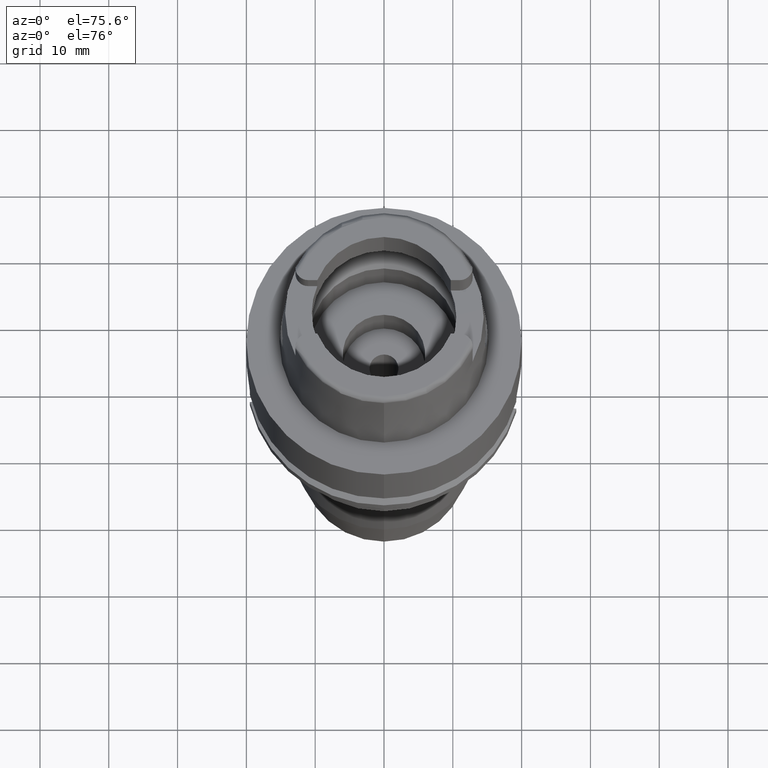
[diagram: clean part render]
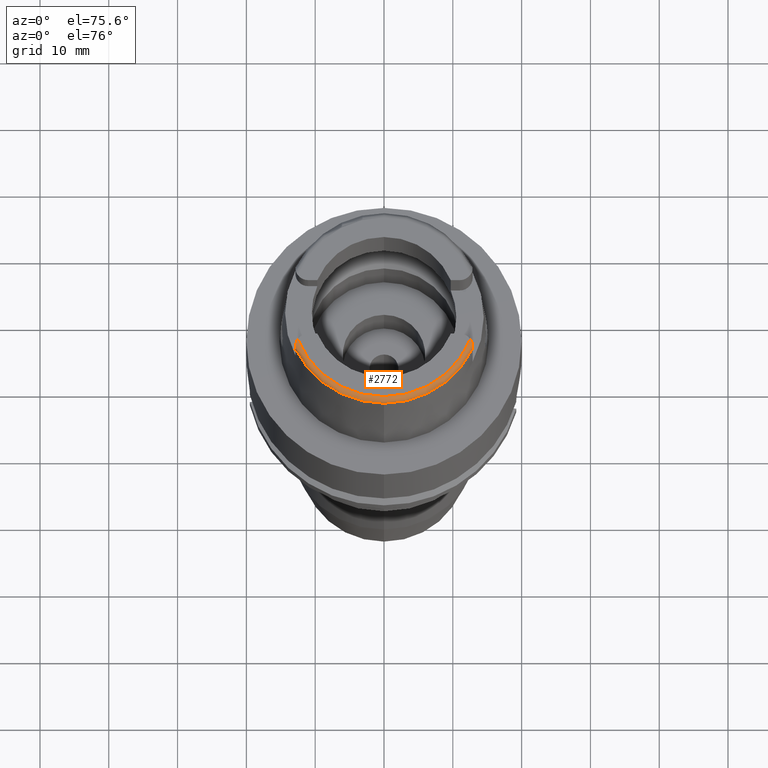
[diagram: same view with one face highlighted and labeled with its STEP entity id]
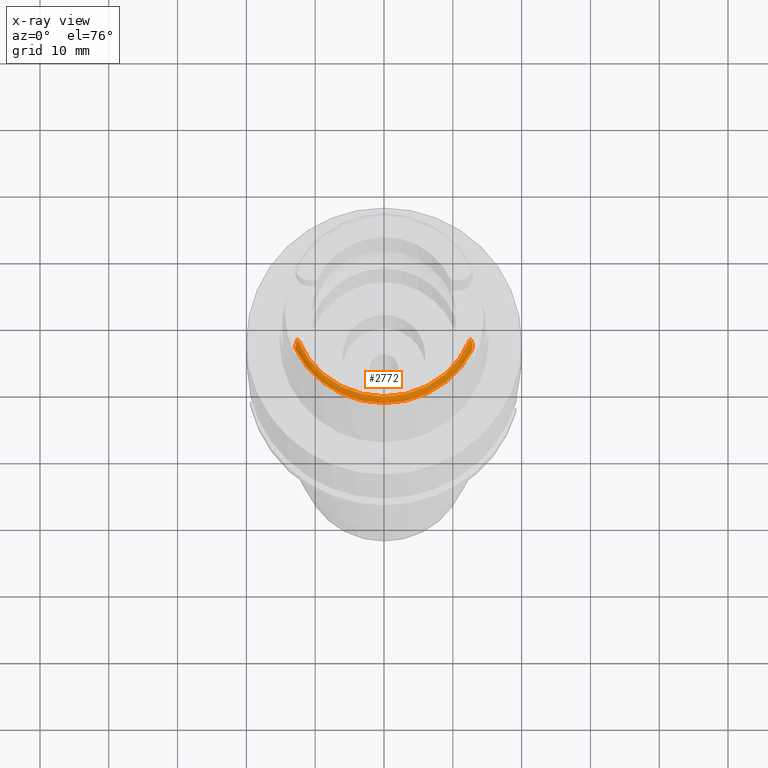
[diagram: x-ray of the same camera — body ghosted, the highlighted face saturated]
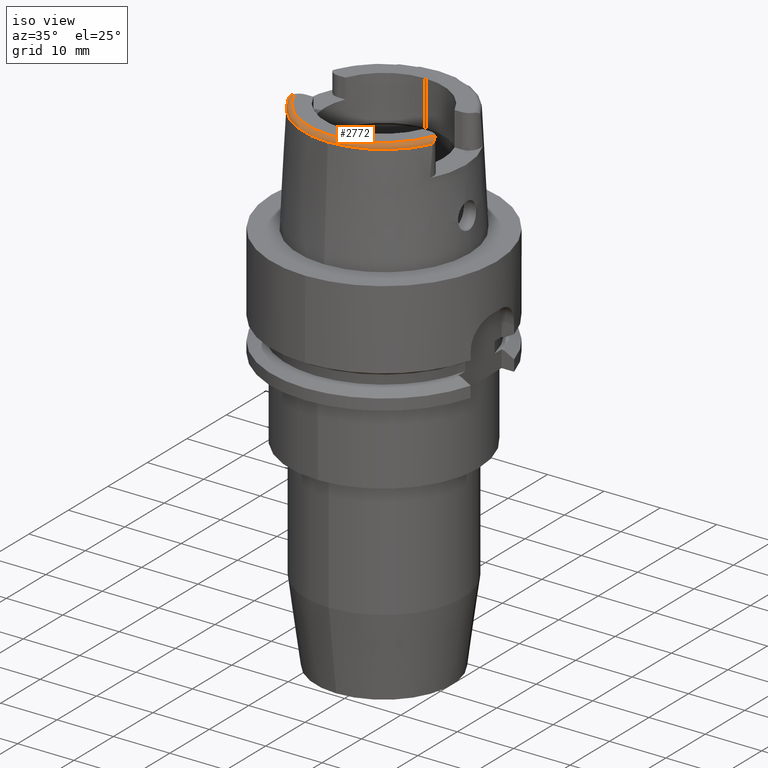
[diagram: same view with one face highlighted and labeled with its STEP entity id]
A machine part, auxiliary view. The second image highlights one B-rep face of the part: STEP entity #2772.
The next image is the same camera in x-ray: the body ghosted, the highlighted face saturated — about 0% of this face is hidden behind the body in this view.
A second angle (iso view) of the same face is appended — the face is thin or edge-on in the first view.
In plain terms, the highlighted toroidal blend (fillet) surface has major radius 13.439 mm and minor (blend) radius 0.8 mm.
Its self-contained STEP definition (entity closure, byte-faithful):
#185=CARTESIAN_POINT('',(0.E0,0.E0,2.E1));
#186=DIRECTION('',(0.E0,0.E0,-1.E0));
#187=DIRECTION('',(9.332173178785E-1,-3.593124512337E-1,0.E0));
#188=AXIS2_PLACEMENT_3D('',#185,#186,#187);
#193=CARTESIAN_POINT('',(-1.254148453354E1,-4.828791175991E0,2.E1));
#194=CARTESIAN_POINT('',(-1.256933703145E1,-4.868685101587E0,2.E1));
#195=CARTESIAN_POINT('',(-1.262472661190E1,-4.954514221996E0,1.999397690296E1));
#196=CARTESIAN_POINT('',(-1.270426141759E1,-5.104880817021E0,1.996315983005E1));
#197=CARTESIAN_POINT('',(-1.277282652896E1,-5.270529287587E0,1.990940035316E1));
#198=CARTESIAN_POINT('',(-1.282615536840E1,-5.445976539335E0,1.983344548441E1));
#199=CARTESIAN_POINT('',(-1.286116228316E1,-5.621439464045E0,1.973862853204E1));
#200=CARTESIAN_POINT('',(-1.287782548318E1,-5.781743109770E0,1.963235390551E1));
#201=CARTESIAN_POINT('',(-1.288E1,-5.866975166907E0,1.956236589048E1));
#202=CARTESIAN_POINT('',(-1.288E1,-5.905E0,1.952698079990E1));
#221=CARTESIAN_POINT('',(-1.287999878070E1,-6.068418770009E0,1.923992103490E1));
#222=CARTESIAN_POINT('',(-1.287999878070E1,-6.065734988643E0,1.926279752074E1));
#223=CARTESIAN_POINT('',(-1.288000056611E1,-6.055712885366E0,1.930921734373E1));
#224=CARTESIAN_POINT('',(-1.287999984759E1,-6.024486378397E0,1.938157541730E1));
#225=CARTESIAN_POINT('',(-1.288000004355E1,-5.975635981015E0,1.945468106848E1));
#226=CARTESIAN_POINT('',(-1.288E1,-5.930716193903E0,1.950304986381E1));
#227=CARTESIAN_POINT('',(-1.288E1,-5.905E0,1.952698079990E1));
#232=CARTESIAN_POINT('',(1.254148453354E1,-4.828791175991E0,2.E1));
#233=CARTESIAN_POINT('',(1.256934806794E1,-4.868700909469E0,2.E1));
#234=CARTESIAN_POINT('',(1.262474681878E1,-4.954549669949E0,1.999397120350E1));
#235=CARTESIAN_POINT('',(1.270425488961E1,-5.104871547126E0,1.996316005503E1));
#236=CARTESIAN_POINT('',(1.277280978087E1,-5.270482565922E0,1.990941810432E1));
#237=CARTESIAN_POINT('',(1.282615213853E1,-5.445958003205E0,1.983345587626E1));
#238=CARTESIAN_POINT('',(1.286116670503E1,-5.621460063382E0,1.973861801159E1));
#239=CARTESIAN_POINT('',(1.287782873136E1,-5.781794249636E0,1.963231676204E1));
#240=CARTESIAN_POINT('',(1.288E1,-5.866995584811E0,1.956234689002E1));
#241=CARTESIAN_POINT('',(1.288E1,-5.905E0,1.952698079990E1));
#246=CARTESIAN_POINT('',(1.288E1,-5.905E0,1.952698079990E1));
#247=CARTESIAN_POINT('',(1.288E1,-5.930719306509E0,1.950304696728E1));
#248=CARTESIAN_POINT('',(1.287999992360E1,-5.975642285427E0,1.945467503640E1));
#249=CARTESIAN_POINT('',(1.288000026739E1,-6.024484614977E0,1.938156958081E1));
#250=CARTESIAN_POINT('',(1.287999900684E1,-6.055716390166E0,1.930924171788E1));
#251=CARTESIAN_POINT('',(1.288000213911E1,-6.065724023697E0,1.926275671688E1));
#252=CARTESIAN_POINT('',(1.288000213911E1,-6.068393243487E0,1.924000435354E1));
#257=CARTESIAN_POINT('',(0.E0,0.E0,1.923995141520E1));
#258=DIRECTION('',(0.E0,0.E0,-1.E0));
#259=DIRECTION('',(9.046233376277E-1,-4.262119390859E-1,0.E0));
#260=AXIS2_PLACEMENT_3D('',#257,#258,#259);
#265=CARTESIAN_POINT('',(0.E0,0.E0,1.923995141520E1));
#266=DIRECTION('',(0.E0,0.E0,-1.E0));
#267=DIRECTION('',(0.E0,-1.E0,0.E0));
#268=AXIS2_PLACEMENT_3D('',#265,#266,#267);
#273=CARTESIAN_POINT('',(0.E0,0.E0,1.923995141520E1));
#274=DIRECTION('',(0.E0,0.E0,-1.E0));
#275=DIRECTION('',(-1.046041333563E-3,-9.999994528986E-1,0.E0));
#276=AXIS2_PLACEMENT_3D('',#273,#274,#275);
#2297=CARTESIAN_POINT('',(-1.254148453353E1,-4.828791175990E0,2.E1));
#2299=VERTEX_POINT('',#2297);
#2309=CARTESIAN_POINT('',(1.254148453353E1,-4.828791175990E0,2.E1));
#2310=VERTEX_POINT('',#2309);
#2331=VERTEX_POINT('',#202);
#2341=VERTEX_POINT('',#221);
#2342=VERTEX_POINT('',#241);
#2343=VERTEX_POINT('',#252);
#2344=CARTESIAN_POINT('',(0.E0,-1.423797715756E1,1.923995141520E1));
#2345=VERTEX_POINT('',#2344);
#2346=CARTESIAN_POINT('',(-1.489351261313E-2,-1.423796936794E1,
1.923995141520E1));
#2347=VERTEX_POINT('',#2346);
#2751=CARTESIAN_POINT('',(0.E0,0.E0,1.92E1));
#2752=DIRECTION('',(0.E0,0.E0,1.E0));
#2753=DIRECTION('',(-1.046041333563E-3,-9.999994528986E-1,0.E0));
#2754=AXIS2_PLACEMENT_3D('',#2751,#2752,#2753);
#2755=TOROIDAL_SURFACE('',#2754,1.343897535254E1,8.E-1);
#2757=ORIENTED_EDGE('',*,*,#2756,.T.);
#2758=ORIENTED_EDGE('',*,*,#2742,.F.);
#2759=ORIENTED_EDGE('',*,*,#2731,.F.);
#2761=ORIENTED_EDGE('',*,*,#2760,.T.);
#2763=ORIENTED_EDGE('',*,*,#2762,.T.);
#2765=ORIENTED_EDGE('',*,*,#2764,.T.);
#2767=ORIENTED_EDGE('',*,*,#2766,.T.);
#2769=ORIENTED_EDGE('',*,*,#2768,.T.);
#2770=EDGE_LOOP('',(#2757,#2758,#2759,#2761,#2763,#2765,#2767,#2769));
#2771=FACE_OUTER_BOUND('',#2770,.F.);
#189=CIRCLE('',#188,1.343897535254E1);
#203=B_SPLINE_CURVE_WITH_KNOTS('',3,(#193,#194,#195,#196,#197,#198,#199,#200,
#201,#202),.UNSPECIFIED.,.F.,.F.,(4,1,1,1,1,1,1,4),(0.E0,1.428571428571E-1,
2.857142857143E-1,4.285714285714E-1,5.714285714286E-1,7.142857142857E-1,
8.571428571429E-1,1.E0),.UNSPECIFIED.);
#228=B_SPLINE_CURVE_WITH_KNOTS('',3,(#221,#222,#223,#224,#225,#226,#227),
.UNSPECIFIED.,.F.,.F.,(4,1,1,1,4),(0.E0,2.5E-1,5.E-1,7.5E-1,1.E0),
.UNSPECIFIED.);
#242=B_SPLINE_CURVE_WITH_KNOTS('',3,(#232,#233,#234,#235,#236,#237,#238,#239,
#240,#241),.UNSPECIFIED.,.F.,.F.,(4,1,1,1,1,1,1,4),(0.E0,1.428571428571E-1,
2.857142857143E-1,4.285714285714E-1,5.714285714286E-1,7.142857142857E-1,
8.571428571429E-1,1.E0),.UNSPECIFIED.);
#253=B_SPLINE_CURVE_WITH_KNOTS('',3,(#246,#247,#248,#249,#250,#251,#252),
.UNSPECIFIED.,.F.,.F.,(4,1,1,1,4),(0.E0,2.5E-1,5.E-1,7.5E-1,1.E0),
.UNSPECIFIED.);
#261=CIRCLE('',#260,1.423797715756E1);
#269=CIRCLE('',#268,1.423797715756E1);
#277=CIRCLE('',#276,1.423797715756E1);
#2731=EDGE_CURVE('',#2310,#2299,#189,.T.);
#2742=EDGE_CURVE('',#2299,#2331,#203,.T.);
#2756=EDGE_CURVE('',#2341,#2331,#228,.T.);
#2760=EDGE_CURVE('',#2310,#2342,#242,.T.);
#2762=EDGE_CURVE('',#2342,#2343,#253,.T.);
#2764=EDGE_CURVE('',#2343,#2345,#261,.T.);
#2766=EDGE_CURVE('',#2345,#2347,#269,.T.);
#2768=EDGE_CURVE('',#2347,#2341,#277,.T.);
#2772=ADVANCED_FACE('',(#2771),#2755,.T.);